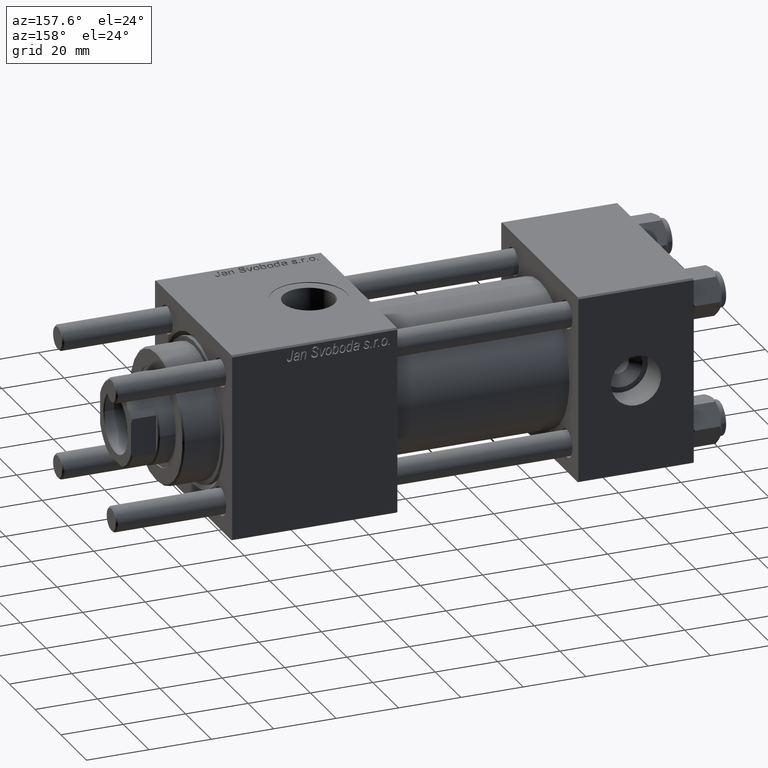
[diagram: clean part render]
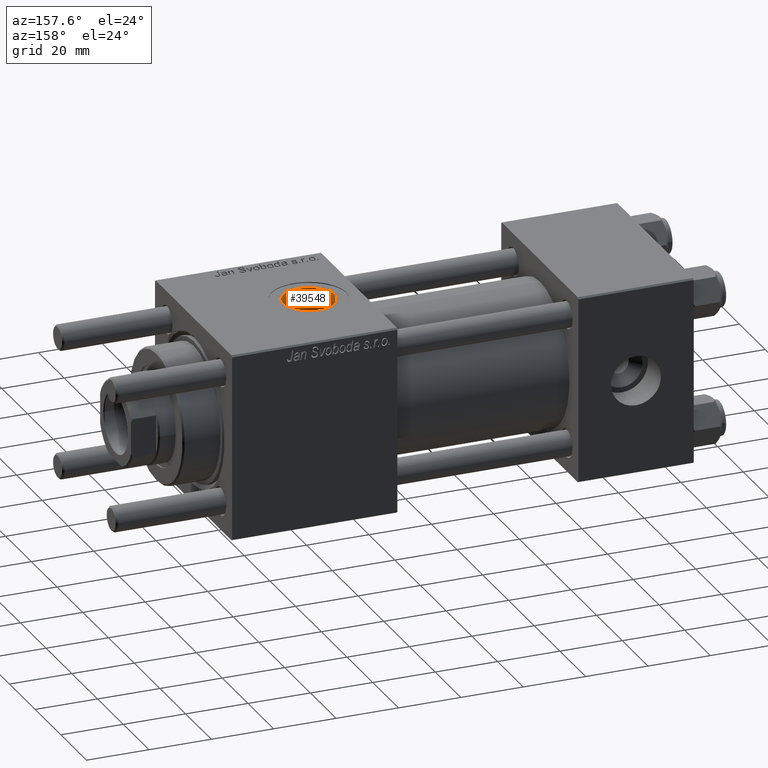
[diagram: same view with one face highlighted and labeled with its STEP entity id]
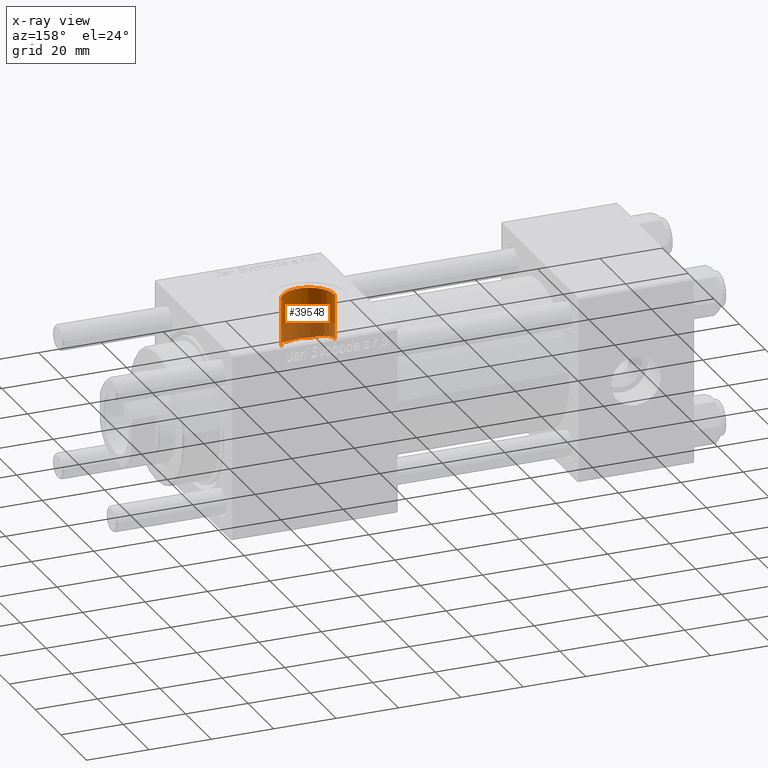
[diagram: x-ray of the same camera — body ghosted, the highlighted face saturated]
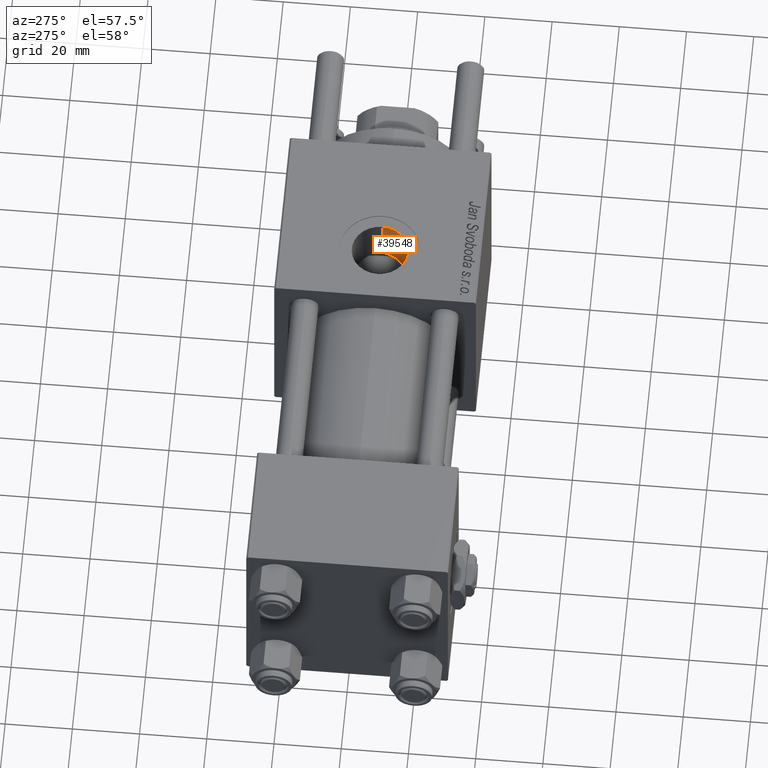
[diagram: same view with one face highlighted and labeled with its STEP entity id]
A machine part, auxiliary view. The second image highlights one B-rep face of the part: STEP entity #39548.
The next image is the same camera in x-ray: the body ghosted, the highlighted face saturated — about 39% of this face is hidden behind the body in this view.
A second angle (auxiliary view) of the same face is appended — the face is thin or edge-on in the first view.
In plain terms, the highlighted cylindrical surface (edge-blend (fillet) strip) has radius 8.33 mm, axis along (0, 0, -1).
Its self-contained STEP definition (entity closure, byte-faithful):
#417 = CARTESIAN_POINT ( 'NONE',  ( 102.6699999999996180, -2.713081726590588117E-14, 15.50000000000020428 ) ) ;
#1147 = ORIENTED_EDGE ( 'NONE', *, *, #25623, .T. ) ;
#1673 = AXIS2_PLACEMENT_3D ( 'NONE', #35757, #31868, #13131 ) ;
#3157 = ORIENTED_EDGE ( 'NONE', *, *, #13319, .T. ) ;
#3713 = CARTESIAN_POINT ( 'NONE',  ( 105.1064272110299385, -5.898864207807588578, 14.33631558793831573 ) ) ;
#3810 = AXIS2_PLACEMENT_3D ( 'NONE', #43650, #57666, #11532 ) ;
#4041 = LINE ( 'NONE', #27521, #38784 ) ;
#4403 = EDGE_CURVE ( 'NONE', #8400, #40480, #20291, .T. ) ;
#6387 = LINE ( 'NONE', #19784, #10003 ) ;
#6674 = CARTESIAN_POINT ( 'NONE',  ( 102.6700000000000017, -3.469446951953613794E-15, 29.79999999999999716 ) ) ;
#7222 = CARTESIAN_POINT ( 'NONE',  ( 114.7548501967455081, -7.435724578008534813, 13.59999999999999076 ) ) ;
#8305 = CARTESIAN_POINT ( 'NONE',  ( 119.2999999999999829, -0.7063285354565423946, 52.79999999999999716 ) ) ;
#8400 = VERTEX_POINT ( 'NONE', #32930 ) ;
#8709 = VERTEX_POINT ( 'NONE', #15132 ) ;
#9184 = CARTESIAN_POINT ( 'NONE',  ( 119.2999999999999829, -0.7063285354565423946, 22.48891060056044111 ) ) ;
#9775 = CARTESIAN_POINT ( 'NONE',  ( 102.6699999999996180, -2.713081726590588117E-14, 15.50000000000020428 ) ) ;
#10003 = VECTOR ( 'NONE', #37940, 1000.000000000000000 ) ;
#10063 = VERTEX_POINT ( 'NONE', #6674 ) ;
#10146 = ORIENTED_EDGE ( 'NONE', *, *, #23522, .F. ) ;
#11088 = CARTESIAN_POINT ( 'NONE',  ( 118.7215032992636736, -3.145651711574988241, 15.18130506059506679 ) ) ;
#11532 = DIRECTION ( 'NONE',  ( 1.000000000000000000, 0.000000000000000000, 0.000000000000000000 ) ) ;
#11590 = AXIS2_PLACEMENT_3D ( 'NONE', #44607, #58034, #17228 ) ;
#11696 = CARTESIAN_POINT ( 'NONE',  ( 115.0719793388101806, -7.275582495151264872, 13.68755679569670036 ) ) ;
#11982 = CARTESIAN_POINT ( 'NONE',  ( 118.0762267006177098, -4.408899020335755203, 14.86282536370445229 ) ) ;
#13055 = CARTESIAN_POINT ( 'NONE',  ( 119.3300000000000125, 2.755455270027974659E-15, 22.50000000000000355 ) ) ;
#13131 = DIRECTION ( 'NONE',  ( 1.000000000000000000, 0.000000000000000000, 0.000000000000000000 ) ) ;
#13319 = EDGE_CURVE ( 'NONE', #8709, #18631, #18209, .T. ) ;
#14376 = CARTESIAN_POINT ( 'NONE',  ( 103.2388751121312396, -3.050237885181526387, 15.20123122413415828 ) ) ;
#14701 = ORIENTED_EDGE ( 'NONE', *, *, #54095, .T. ) ;
#14962 = CARTESIAN_POINT ( 'NONE',  ( 103.7356139241942827, -4.094008462183724717, 14.95330218343579709 ) ) ;
#15132 = CARTESIAN_POINT ( 'NONE',  ( 107.2451498032544919, -7.435724578008534813, 13.59999999999999076 ) ) ;
#15842 = CARTESIAN_POINT ( 'NONE',  ( 116.2310764146980091, -6.491922975836205367, 14.07719584522191347 ) ) ;
#16439 = CARTESIAN_POINT ( 'NONE',  ( 119.2379181272459761, -1.435846766692881138, 15.45061967576075013 ) ) ;
#16744 = VERTEX_POINT ( 'NONE', #39771 ) ;
#17029 = EDGE_CURVE ( 'NONE', #10063, #18631, #6387, .T. ) ;
#17095 = CARTESIAN_POINT ( 'NONE',  ( 105.9411433775953384, -6.660665606237818892, 14.00684504084867754 ) ) ;
#17228 = DIRECTION ( 'NONE',  ( -1.000000000000000000, 0.000000000000000000, 0.000000000000000000 ) ) ;
#17695 = CARTESIAN_POINT ( 'NONE',  ( 119.2999999999999829, -0.7063285354565423946, 15.48389808801387701 ) ) ;
#18097 = CARTESIAN_POINT ( 'NONE',  ( 119.3200361445783102, -0.4708856903043605602, 22.49630535626710781 ) ) ;
#18209 = B_SPLINE_CURVE_WITH_KNOTS ( 'NONE', 3,
 ( #57901, #21870, #17095, #3713, #40015, #42337, #46223, #14962, #46814, #14376, #41463, #32829, #18847, #41172, #37303, #417 ),
 .UNSPECIFIED., .F., .F.,
 ( 4, 2, 2, 2, 2, 2, 2, 4 ),
 ( 1.762687342693953287E-17, 0.002343612196725057811, 0.003515418295087579994, 0.004687224393450101743, 0.005859030491812623059, 0.007030836590175145243, 0.008202642688537667426, 0.009374448786900189609 ),
 .UNSPECIFIED. ) ;
#18416 = EDGE_LOOP ( 'NONE', ( #10146, #1147, #27217, #52517, #14701, #19312, #3157, #18944 ) ) ;
#18631 = VERTEX_POINT ( 'NONE', #9775 ) ;
#18847 = CARTESIAN_POINT ( 'NONE',  ( 102.8089720379881413, -1.564748737126397504, 15.42568822226018455 ) ) ;
#18944 = ORIENTED_EDGE ( 'NONE', *, *, #17029, .F. ) ;
#19312 = ORIENTED_EDGE ( 'NONE', *, *, #47203, .F. ) ;
#19784 = CARTESIAN_POINT ( 'NONE',  ( 102.6700000000000017, -3.469446951953613794E-15, 52.79999999999999716 ) ) ;
#20291 = B_SPLINE_CURVE_WITH_KNOTS ( 'NONE', 3,
 ( #13055, #54128, #18097, #9184 ),
 .UNSPECIFIED., .F., .F.,
 ( 4, 4 ),
 ( 0.0007063285354565328363, 0.001412657070913077816 ),
 .UNSPECIFIED. ) ;
#21207 = CARTESIAN_POINT ( 'NONE',  ( 119.0832175232422827, -2.135847849508031526, 15.36739229984345556 ) ) ;
#21707 = FACE_OUTER_BOUND ( 'NONE', #18416, .T. ) ;
#21870 = CARTESIAN_POINT ( 'NONE',  ( 106.5580543014319232, -7.088758972554062510, 13.78970152060303711 ) ) ;
#23522 = EDGE_CURVE ( 'NONE', #16744, #10063, #35883, .T. ) ;
#24160 = B_SPLINE_CURVE_WITH_KNOTS ( 'NONE', 3,
 ( #43796, #16439, #21207, #11088, #38472, #47699, #11982, #57527, #38763, #39060, #34600, #15842, #25087, #53037, #11696, #7222 ),
 .UNSPECIFIED., .F., .F.,
 ( 4, 2, 2, 2, 2, 2, 2, 4 ),
 ( 3.416651864263509077E-16, 0.002164281519508079021, 0.003246422279261940939, 0.004328563039015803290, 0.005410703798769665208, 0.006492844558523526259, 0.007574985318277389044, 0.008657126078031250963 ),
 .UNSPECIFIED. ) ;
#25087 = CARTESIAN_POINT ( 'NONE',  ( 115.9563515716283746, -6.704148802593676848, 13.97684504926374061 ) ) ;
#25623 = EDGE_CURVE ( 'NONE', #16744, #8400, #4041, .T. ) ;
#27217 = ORIENTED_EDGE ( 'NONE', *, *, #4403, .T. ) ;
#27521 = CARTESIAN_POINT ( 'NONE',  ( 119.3300000000000125, -2.449316168263869032E-15, 52.79999999999999716 ) ) ;
#31868 = DIRECTION ( 'NONE',  ( -0.000000000000000000, -0.000000000000000000, -1.000000000000000000 ) ) ;
#32540 = CARTESIAN_POINT ( 'NONE',  ( 114.7548501967455081, -7.435724578008534813, 13.59999999999999076 ) ) ;
#32829 = CARTESIAN_POINT ( 'NONE',  ( 102.8906515532532637, -1.943315834972990430, 15.38227098439064022 ) ) ;
#32930 = CARTESIAN_POINT ( 'NONE',  ( 119.3300000000000125, 2.755455270027974659E-15, 22.50000000000000355 ) ) ;
#34600 = CARTESIAN_POINT ( 'NONE',  ( 116.7527035097904502, -6.034536163537686626, 14.27924648151569897 ) ) ;
#35757 = CARTESIAN_POINT ( 'NONE',  ( 111.0000000000000000, -3.469446951953613794E-15, 29.79999999999999716 ) ) ;
#35883 = CIRCLE ( 'NONE', #1673, 8.330000000000003624 ) ;
#35974 = DIRECTION ( 'NONE',  ( -0.000000000000000000, -0.000000000000000000, 1.000000000000000000 ) ) ;
#37027 = VECTOR ( 'NONE', #35974, 1000.000000000000000 ) ;
#37303 = CARTESIAN_POINT ( 'NONE',  ( 102.6700000000000301, -0.3932737753490447297, 15.50000000000000178 ) ) ;
#37940 = DIRECTION ( 'NONE',  ( 0.000000000000000000, 0.000000000000000000, -1.000000000000000000 ) ) ;
#38472 = CARTESIAN_POINT ( 'NONE',  ( 118.5780231920914360, -3.476751477085508135, 15.10853693558145494 ) ) ;
#38763 = CARTESIAN_POINT ( 'NONE',  ( 117.4654438345355487, -5.264046141787121158, 14.58145607373045571 ) ) ;
#38784 = VECTOR ( 'NONE', #45378, 1000.000000000000000 ) ;
#39060 = CARTESIAN_POINT ( 'NONE',  ( 116.9996026483513276, -5.789379398717359848, 14.38096412590969564 ) ) ;
#39548 = ADVANCED_FACE ( 'NONE', ( #21707 ), #39854, .F. ) ;
#39771 = CARTESIAN_POINT ( 'NONE',  ( 119.3300000000000125, -2.449316168263869821E-15, 29.79999999999999716 ) ) ;
#39854 = CYLINDRICAL_SURFACE ( 'NONE', #11590, 8.330000000000003624 ) ;
#40015 = CARTESIAN_POINT ( 'NONE',  ( 104.8421395764249837, -5.622509492967815881, 14.44759832893447360 ) ) ;
#40480 = VERTEX_POINT ( 'NONE', #49314 ) ;
#41009 = LINE ( 'NONE', #8305, #37027 ) ;
#41172 = CARTESIAN_POINT ( 'NONE',  ( 102.6985123997140477, -0.7916320528489119157, 15.48462509825850653 ) ) ;
#41463 = CARTESIAN_POINT ( 'NONE',  ( 103.1052114789570311, -2.685204437881589801, 15.27024604249924522 ) ) ;
#42337 = CARTESIAN_POINT ( 'NONE',  ( 104.3580999100944950, -5.041529647880462761, 14.66044642165734757 ) ) ;
#43650 = CARTESIAN_POINT ( 'NONE',  ( 111.0000000000000000, -3.469446951953613794E-15, 13.59999999999999076 ) ) ;
#43796 = CARTESIAN_POINT ( 'NONE',  ( 119.2999999999999829, -0.7063285354565423946, 15.48389808801387701 ) ) ;
#44607 = CARTESIAN_POINT ( 'NONE',  ( 111.0000000000000000, -3.469446951953613794E-15, 52.79999999999999716 ) ) ;
#44626 = CIRCLE ( 'NONE', #3810, 8.330000000000003624 ) ;
#45378 = DIRECTION ( 'NONE',  ( 0.000000000000000000, 0.000000000000000000, -1.000000000000000000 ) ) ;
#46223 = CARTESIAN_POINT ( 'NONE',  ( 104.1369027071221751, -4.736043274220092414, 14.76252165391442794 ) ) ;
#46814 = CARTESIAN_POINT ( 'NONE',  ( 103.5555123538905207, -3.757474466741724584, 15.04203335714862710 ) ) ;
#46967 = EDGE_CURVE ( 'NONE', #55711, #40480, #41009, .T. ) ;
#47203 = EDGE_CURVE ( 'NONE', #8709, #55753, #44626, .T. ) ;
#47699 = CARTESIAN_POINT ( 'NONE',  ( 118.2557022334251258, -4.107191428843018244, 14.94947048340120332 ) ) ;
#49314 = CARTESIAN_POINT ( 'NONE',  ( 119.2999999999999829, -0.7063285354565423946, 22.48891060056044111 ) ) ;
#52517 = ORIENTED_EDGE ( 'NONE', *, *, #46967, .F. ) ;
#53037 = CARTESIAN_POINT ( 'NONE',  ( 115.3773959923152148, -7.095733675622498460, 13.78217589145789645 ) ) ;
#54095 = EDGE_CURVE ( 'NONE', #55711, #55753, #24160, .T. ) ;
#54128 = CARTESIAN_POINT ( 'NONE',  ( 119.3300000000000125, -0.2354428451521790588, 22.50000000000000355 ) ) ;
#55711 = VERTEX_POINT ( 'NONE', #17695 ) ;
#55753 = VERTEX_POINT ( 'NONE', #32540 ) ;
#57527 = CARTESIAN_POINT ( 'NONE',  ( 117.6814859054843367, -4.986894924185446776, 14.67899340481585746 ) ) ;
#57666 = DIRECTION ( 'NONE',  ( 0.000000000000000000, 0.000000000000000000, 1.000000000000000000 ) ) ;
#57901 = CARTESIAN_POINT ( 'NONE',  ( 107.2451498032544919, -7.435724578008534813, 13.59999999999999076 ) ) ;
#58034 = DIRECTION ( 'NONE',  ( 0.000000000000000000, 0.000000000000000000, -1.000000000000000000 ) ) ;